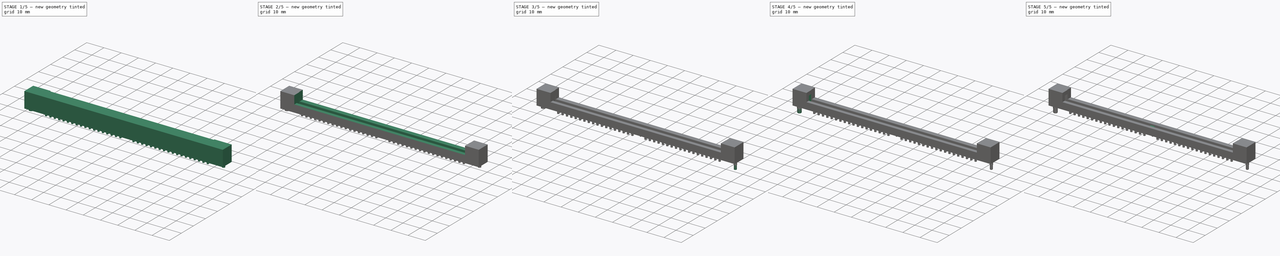
[diagram: build sequence overview — one tinted view per stage of 5, left to right]
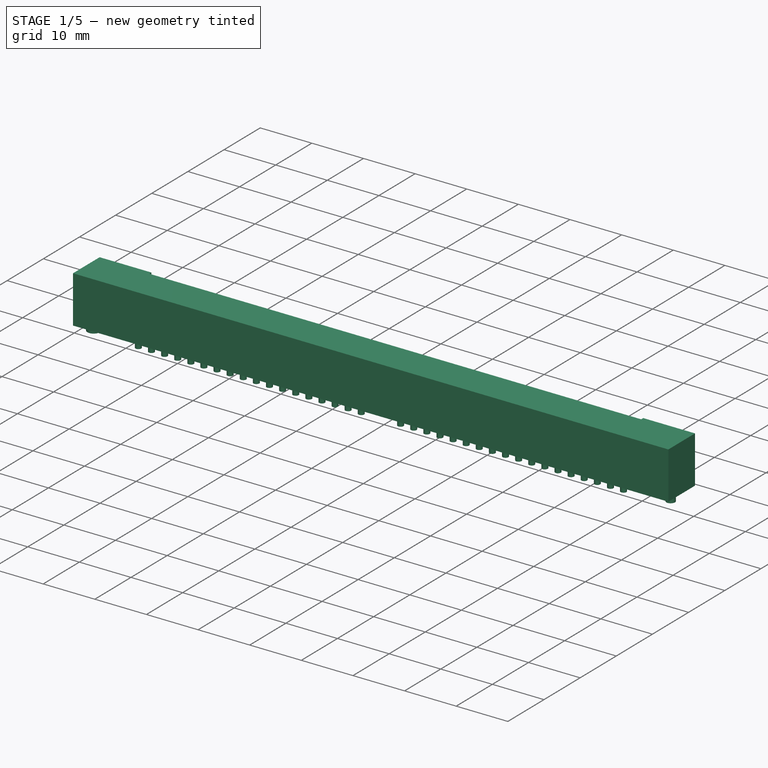
[diagram: stage 1 of 5 — iso view after this stage's code; geometry added in this stage tinted green]
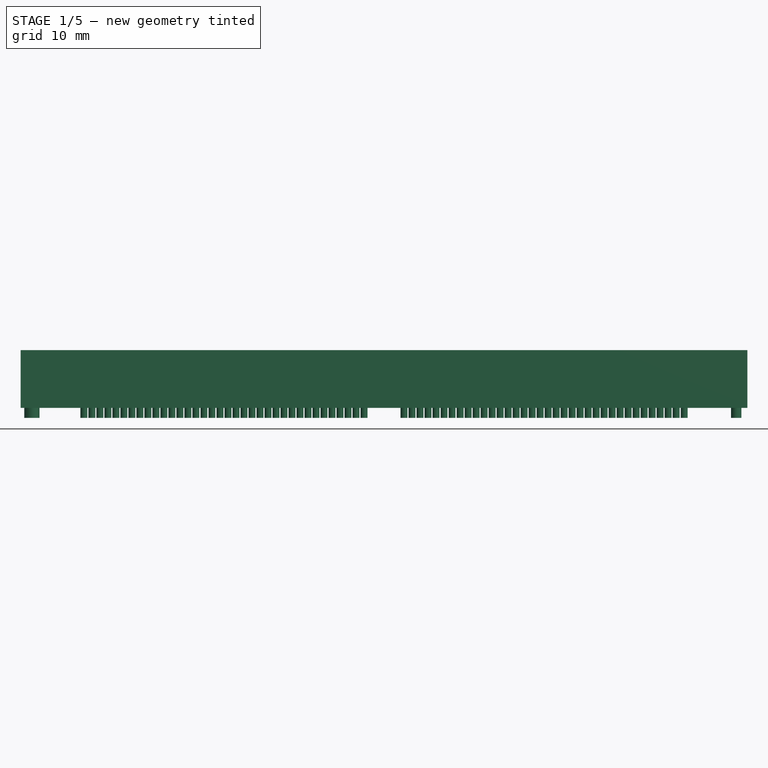
[diagram: stage 1 of 5 — front view after this stage's code; geometry added in this stage tinted green]
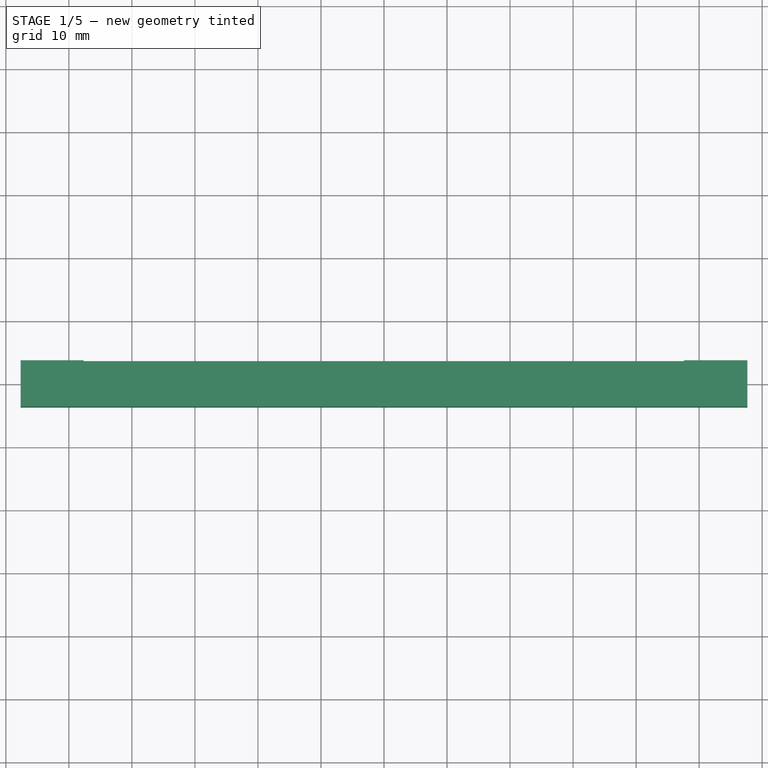
[diagram: stage 1 of 5 — top view after this stage's code; geometry added in this stage tinted green]
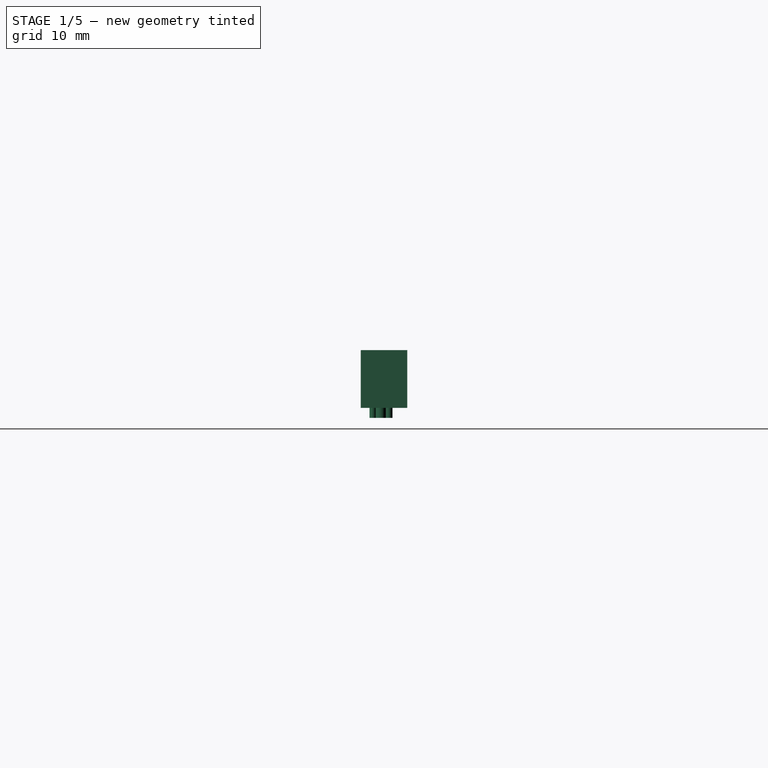
[diagram: stage 1 of 5 — right view after this stage's code; geometry added in this stage tinted green]
FCSTD DOCUMENT  (FreeCAD 0.20R29177 (Git))
Label: TE_5822019-4
License: All rights reserved
LicenseURL: http://en.wikipedia.org/wiki/All_rights_reserved
objects: PartDesign::SubtractiveBox×5, Sketcher::SketchObject×3, PartDesign::AdditiveBox×2, PartDesign::AdditiveCylinder×2, PartDesign::Chamfer×2, PartDesign::Body×2, Part::FeaturePython×2, Part::Feature×1, PartDesign::Pocket×1, PartDesign::Pad×1, PartDesign::Mirrored×1, App::DocumentObjectGroup×1
note: 35 computed .brp shape members not serialized (recipe doc carries the construction recipe); baked Part::Feature solids carry a one-line shape summary decoded from their .brp

FEATURE [Part::Feature] Part__Feature  label="C-5822019-4"
  Placement = pos=(0,0,4.37) rot=(0,0,1;0rad)
  shape: bbox 115.6 x 9.538 x 18.69 mm, 2015 faces (baked)
FEATURE [PartDesign::AdditiveBox] Box  label="base"
  AttacherType = Attacher::AttachEngine3D
  AttachmentOffset = pos=(-57.66,-3.685,0) rot=(0,0,1;0rad)
  Height = 9.15
  Length = 115.32
  MapMode = 5
  Placement = pos=(-57.66,-3.685,0) rot=(0,0,1;0rad)
  Support = -> [XY_Plane]
  Width = 7.37
FEATURE [PartDesign::SubtractiveBox] Box001  label="front-cut"
  AttacherType = Attacher::AttachEngine3D
  AttachmentOffset = pos=(-47.65,1.15,-3.69) rot=(0,0,1;0rad)
  BaseFeature = -> Box
  Height = 0.57
  Length = 95.2755
  MapMode = 5
  Placement = pos=(-47.65,3.69,1.15) rot=(1,0,0;1.5708rad)
  Support = -> [XZ_Plane]
  Width = 9
FEATURE [PartDesign::Body] Body  label="plastic"
  Group = -> [Box,Box001,Box002,Sketch001,Pocket,Box003,Box004,Sketch,Pad,Cylinder,Cylinder001,Chamfer,Box005,Mirrored,Box006,Chamfer001]
  Origin = -> Origin
  Tip = -> Chamfer001
FEATURE [Part::FeaturePython] FFab_lines  label="FFab"  # a2plus imported part (geometry in sourceFile) (typed FeaturePython)
  fixedPosition = true
FEATURE [Part::FeaturePython] THPs  label="PTHs"  # a2plus imported part (geometry in sourceFile) (typed FeaturePython)
  fixedPosition = true
FEATURE [App::DocumentObjectGroup] SIMM_72_socket_fp
  Group = -> [FFab_lines,THPs]
FEATURE [Sketcher::SketchObject] Sketch002
  FullyConstrained = false
  MapMode = 5
  Placement = pos=(0,0,0) rot=(0.57735,0.57735,0.57735;2.0944rad)
  Support = -> [YZ_Plane001]
  sketch-geometry (46):
    g0: LineSegment StartX=-1.56124 StartY=-2.6 StartZ=0 EndX=-1.56124 EndY=0.6 EndZ=0
    g1: LineSegment StartX=-2 StartY=0.6 StartZ=0 EndX=-2 EndY=-2.6 EndZ=0
    g2: LineSegment StartX=-1.65335 StartY=2.29991 StartZ=0 EndX=-1.60274 EndY=0.948405 EndZ=0
    g3: LineSegment StartX=-1.21119 StartY=2.09209 StartZ=0 EndX=-1.29283 EndY=0.943213 EndZ=0
    g4: LineSegment StartX=-2.1 StartY=0.7 StartZ=0 EndX=-2.1 EndY=1.7 EndZ=0
    g5: LineSegment StartX=-2.1 StartY=1.7 StartZ=0 EndX=-2 EndY=1.9 EndZ=0
    g6: LineSegment StartX=-2 StartY=0.6 StartZ=0 EndX=-2.1 EndY=0.7 EndZ=0
    g7: LineSegment StartX=-2 StartY=1.9 StartZ=0 EndX=-2 EndY=3.65329 EndZ=0
    g8: LineSegment StartX=-1.72661 StartY=3.76644 StartZ=0 EndX=-1.22053 EndY=3.25973 EndZ=0
    g9: LineSegment StartX=-1.3332 StartY=2.83804 StartZ=0 EndX=-1.45476 EndY=2.80521 EndZ=0
    g10: LineSegment StartX=-1.65335 StartY=2.54586 StartZ=0 EndX=-1.65335 EndY=2.29991 EndZ=0
    g11: ArcOfCircle CenterX=-1.83989 CenterY=3.65329 CenterZ=0 NormalX=0 NormalY=0 NormalZ=1 AngleXU=0 Radius=0.160109 StartAngle=0.784775 EndAngle=3.14159
    g12: ArcOfCircle CenterX=-1.44764 CenterY=0.954213 CenterZ=0 NormalX=0 NormalY=0 NormalZ=1 AngleXU=0 Radius=0.155209 StartAngle=3.17902 EndAngle=6.21225
    g13: ArcOfCircle CenterX=-1.38471 CenterY=2.54586 CenterZ=0 NormalX=0 NormalY=0 NormalZ=1 AngleXU=0 Radius=0.268644 StartAngle=1.83462 EndAngle=3.14159
    g14: ArcOfCircle CenterX=-1.39897 CenterY=3.08151 CenterZ=0 NormalX=0 NormalY=0 NormalZ=1 AngleXU=0 Radius=0.252194 StartAngle=4.97621 EndAngle=7.06796
    g15-g23: Circle x9 (B-spline internal-alignment scaffolding for g24; pole/knot coordinates omitted)
    g24: BSplineCurve PolesCount=9 KnotsCount=7 Degree=3 IsPeriodic=0
    g25-g31: GeomPoint x7 (B-spline internal-alignment scaffolding for g24; pole/knot coordinates omitted)
    g32: LineSegment StartX=-1.04175 StartY=2.24993 StartZ=0 EndX=-0.249928 EndY=2.24993 EndZ=0
    g33: LineSegment StartX=-0.1 StartY=2.1 StartZ=0 EndX=-0.1 EndY=0.957632 EndZ=0
    g34: LineSegment StartX=0.057632 StartY=0.8 StartZ=0 EndX=0.0704177 EndY=0.8 EndZ=0
    g35: LineSegment StartX=0.232709 StartY=0.925386 StartZ=0 EndX=0.8 EndY=3.1 EndZ=0
    g36: LineSegment StartX=0.8 StartY=3.1 StartZ=0 EndX=0.8 EndY=3.26519 EndZ=0
    g37: LineSegment StartX=0.8 StartY=3.26519 StartZ=0 EndX=0 EndY=4.0267 EndZ=0
    g38: LineSegment StartX=0 StartY=4.4678 StartZ=0 EndX=0.5 EndY=4.4 EndZ=0
    g39: LineSegment StartX=0.7 StartY=4.4 StartZ=0 EndX=0.8 EndY=4.44408 EndZ=0
    g40: LineSegment StartX=0.7 StartY=4.4 StartZ=0 EndX=0.5 EndY=4.4 EndZ=0
    g41: ArcOfCircle CenterX=-1.04175 CenterY=2.08005 CenterZ=0 NormalX=0 NormalY=0 NormalZ=1 AngleXU=0 Radius=0.169873 StartAngle=1.5708 EndAngle=3.07066
    g42: ArcOfCircle CenterX=-0.249928 CenterY=2.1 CenterZ=0 NormalX=0 NormalY=0 NormalZ=1 AngleXU=0 Radius=0.149928 StartAngle=0 EndAngle=1.5708
    g43: ArcOfCircle CenterX=0.057632 CenterY=0.957632 CenterZ=0 NormalX=0 NormalY=0 NormalZ=1 AngleXU=0 Radius=0.157632 StartAngle=3.14159 EndAngle=4.71239
    g44: ArcOfCircle CenterX=0.0704177 CenterY=0.967723 CenterZ=0 NormalX=0 NormalY=0 NormalZ=1 AngleXU=0 Radius=0.167723 StartAngle=4.71239 EndAngle=6.028
    g45: LineSegment StartX=-1.56124 StartY=0.6 StartZ=0 EndX=0.2 EndY=0.6 EndZ=0
  constraints (46):
    c: Vertical(g0)
    c: Vertical(g1)
    c: Vertical(g4)
    c: Coincident(g5,g4)
    c: Coincident(g4,g6)
    c: Coincident(g7,g5)
    c: Vertical(g7)
    c: Vertical(g10)
    c: Coincident(g2,g10)
    c: Tangent(g8,g11) = 1.5708
    c: Tangent(g7,g11) = 1.5708
    c: Tangent(g3,g12) = 1.5708
    c: Tangent(g2,g12) = -1.5708
    c: Tangent(g9,g13) = -1.5708
    c: Tangent(g10,g13) = -1.5708
    c: Tangent(g8,g14) = 1.5708
    c: Tangent(g9,g14) = 1.5708
    c: PointOnObject(g16,g1)
    c: PointOnObject(g22,g0)
    c: Weight(g15) = 1
    c: Equal(g15, g16-g23) x8
    c: InternalAlignment(g15-g23 -> g24) x9
    c: InternalAlignment(g25-g31 -> g24) x7
    c: Coincident(g1,g24)
    c: Coincident(g0,g24)
    c: Horizontal(g32)
    c: Vertical(g33)
    c: Horizontal(g34)
    c: Coincident(g36,g35)
    c: Vertical(g36)
    c: Coincident(g37,g36)
    c: PointOnObject(g37,g-2)
    c: PointOnObject(g38,g-2)
    c: Coincident(g40,g39)
    c: Coincident(g40,g38)
    c: Horizontal(g40)
    c: Tangent(g32,g41) = 1.5708
    c: Tangent(g3,g41) = -1.5708
    c: Tangent(g33,g42) = 1.5708
    c: Tangent(g32,g42) = 1.5708
    c: Tangent(g33,g43) = -1.5708
    c: Tangent(g34,g43) = -1.5708
    c: Tangent(g35,g44) = -1.5708
    c: Tangent(g34,g44) = -1.5708
    c: Coincident(g45,g0)
    c: Horizontal(g45)
FEATURE [PartDesign::Body] Body001  label="Pin"
  Group = -> [Sketch002]
  Origin = -> Origin001
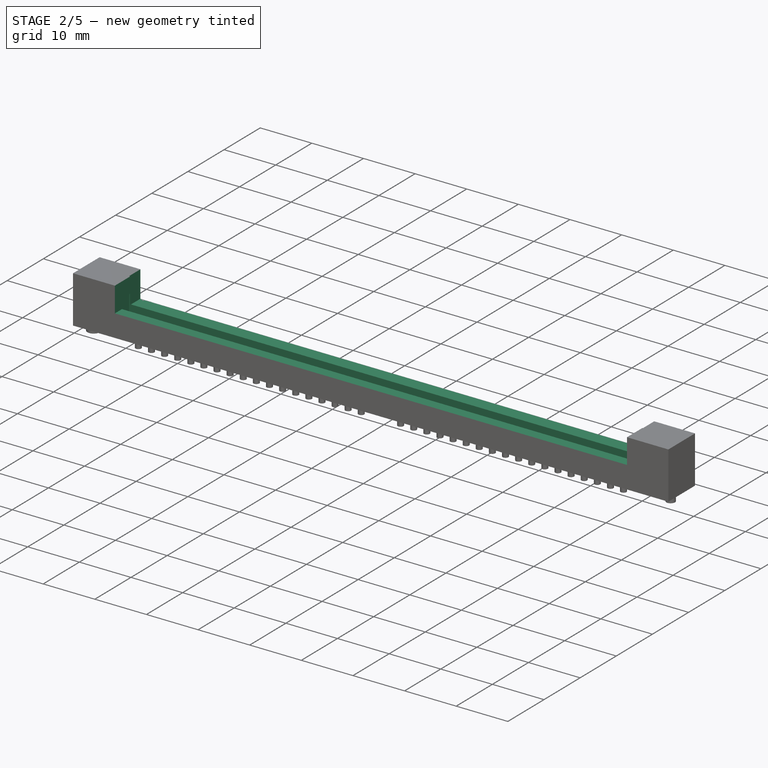
[diagram: stage 2 of 5 — iso view after this stage's code; geometry added in this stage tinted green]
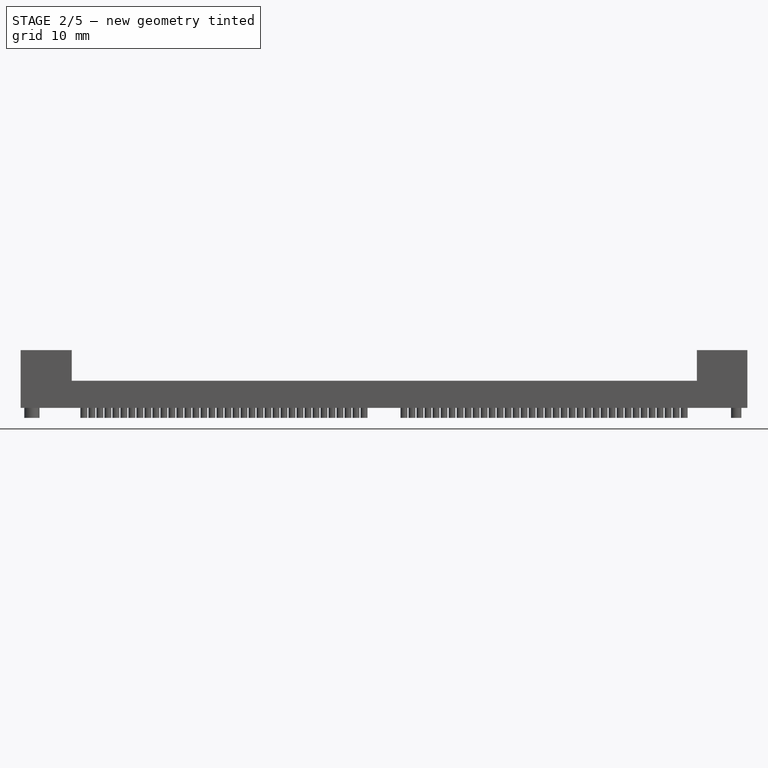
[diagram: stage 2 of 5 — front view after this stage's code; geometry added in this stage tinted green]
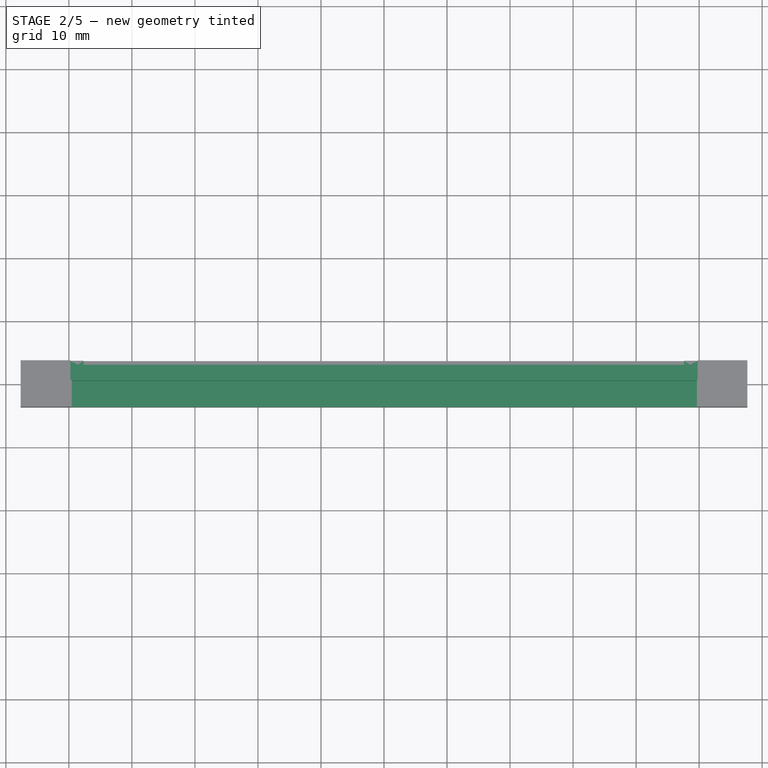
[diagram: stage 2 of 5 — top view after this stage's code; geometry added in this stage tinted green]
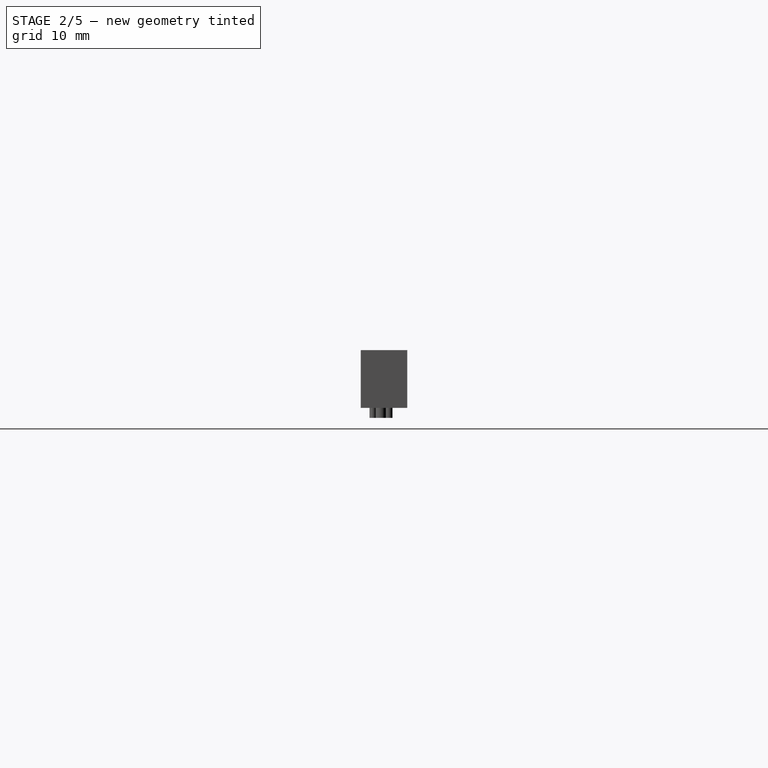
[diagram: stage 2 of 5 — right view after this stage's code; geometry added in this stage tinted green]
FEATURE [PartDesign::SubtractiveBox] Box002  label="through-cut"
  AttacherType = Attacher::AttachEngine3D
  AttachmentOffset = pos=(-49.55,4.3,-4) rot=(0,0,1;0rad)
  BaseFeature = -> Box001
  Height = 8
  Length = 99.2
  MapMode = 5
  Placement = pos=(-49.55,4,4.3) rot=(1,0,0;1.5708rad)
  Support = -> [XZ_Plane]
  Width = 6
FEATURE [Sketcher::SketchObject] Sketch001  label="L-cut-sketch"
  FullyConstrained = false
  sketch-geometry (12):
    g0: LineSegment StartX=-48.5771 StartY=3.05 StartZ=0 EndX=-48.5771 EndY=0.535187 EndZ=0
    g1: LineSegment StartX=-48.5771 StartY=0.535187 StartZ=0 EndX=-49.7589 EndY=0.535187 EndZ=0
    g2: LineSegment StartX=-49.7589 StartY=0.535187 StartZ=0 EndX=-49.7589 EndY=3.7 EndZ=0
    g3: LineSegment StartX=-48.5771 StartY=3.05 StartZ=0 EndX=-47.6261 EndY=3.05 EndZ=0
    g4: LineSegment StartX=-47.6261 StartY=3.05 StartZ=0 EndX=-47.6261 EndY=3.7 EndZ=0
    g5: LineSegment StartX=49.7593 StartY=3.7 StartZ=0 EndX=47.6255 EndY=3.7 EndZ=0
    g6: LineSegment StartX=48.5771 StartY=3.05 StartZ=0 EndX=48.5771 EndY=0.53345 EndZ=0
    g7: LineSegment StartX=48.5771 StartY=0.53345 StartZ=0 EndX=49.7593 EndY=0.53345 EndZ=0
    g8: LineSegment StartX=49.7593 StartY=0.53345 StartZ=0 EndX=49.7593 EndY=3.7 EndZ=0
    g9: LineSegment StartX=48.5771 StartY=3.05 StartZ=0 EndX=47.6255 EndY=3.05 EndZ=0
    g10: LineSegment StartX=47.6255 StartY=3.05 StartZ=0 EndX=47.6255 EndY=3.7 EndZ=0
    g11: LineSegment StartX=-49.7589 StartY=3.7 StartZ=0 EndX=-47.6261 EndY=3.7 EndZ=0
  constraints (24):
    c: Coincident(g0,g1)
    c: Coincident(g1,g2)
    c: Horizontal(g1)
    c: Vertical(g0)
    c: Vertical(g2)
    c: Coincident(g3,g4)
    c: Horizontal(g3)
    c: Vertical(g4)
    c: Coincident(g0,g3)
    c: Coincident(g6,g7)
    c: Coincident(g7,g8)
    c: Coincident(g8,g5)
    c: Horizontal(g5)
    c: Horizontal(g7)
    c: Vertical(g6)
    c: Vertical(g8)
    c: Coincident(g9,g10)
    c: Horizontal(g9)
    c: Vertical(g10)
    c: Coincident(g6,g9)
    c: Coincident(g11,g2)
    c: Coincident(g11,g4)
    c: Horizontal(g11)
    c: Coincident(g5,g10)
FEATURE [PartDesign::Pocket] Pocket  label="L-cuts"
  BaseFeature = -> Box002
  Direction = (0,0,-1)
  Length = 10
  Length2 = -4
  Placement = pos=(-49.55,4,4.3) rot=(1,0,0;1.5708rad)
  Profile = -> Sketch001
  ReferenceAxis = -> Sketch001 [N_Axis]
  Reversed = true
  Type = 4
FEATURE [PartDesign::SubtractiveBox] Box003  label="PCB-cut"
  AttacherType = Attacher::AttachEngine3D
  AttachmentOffset = pos=(-49.75,-1.725,1.15) rot=(0,0,1;0rad)
  BaseFeature = -> Pocket
  Height = 5
  Length = 99.5
  MapMode = 5
  Placement = pos=(-49.75,-1.725,1.15) rot=(0,0,1;0rad)
  Support = -> [XY_Plane]
  Width = 2.25
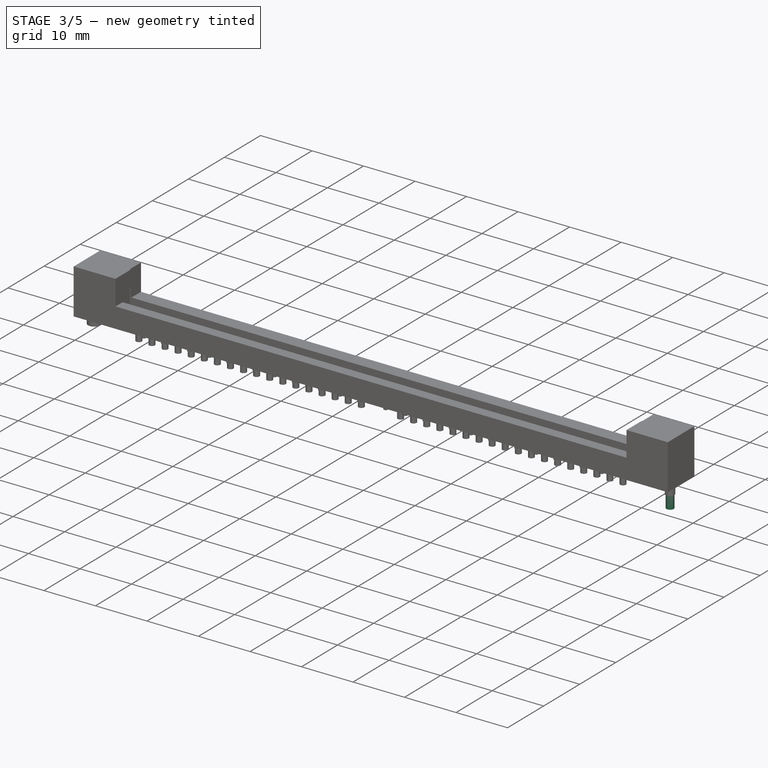
[diagram: stage 3 of 5 — iso view after this stage's code; geometry added in this stage tinted green]
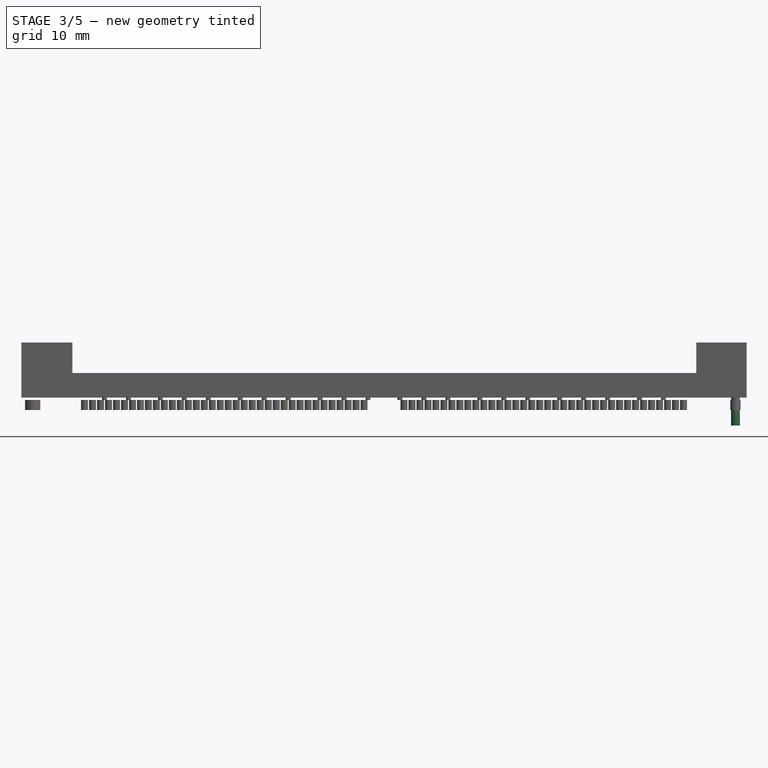
[diagram: stage 3 of 5 — front view after this stage's code; geometry added in this stage tinted green]
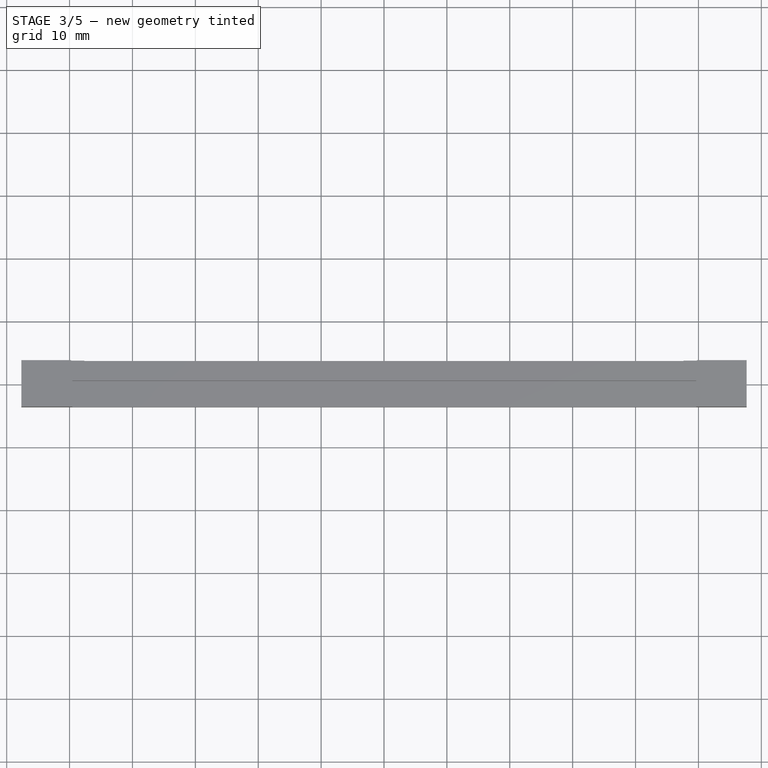
[diagram: stage 3 of 5 — top view after this stage's code; geometry added in this stage tinted green]
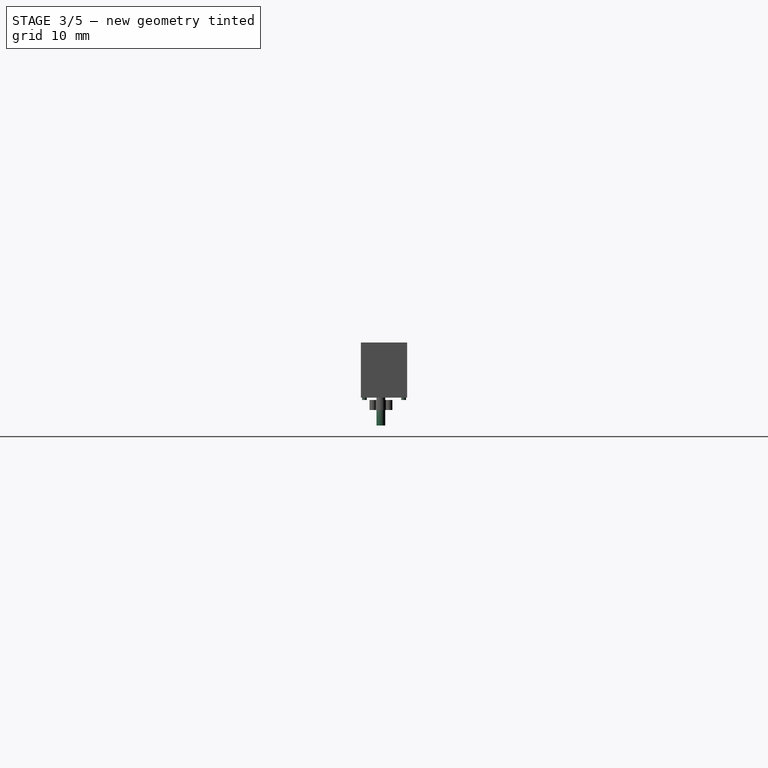
[diagram: stage 3 of 5 — right view after this stage's code; geometry added in this stage tinted green]
FEATURE [PartDesign::SubtractiveBox] Box004  label="bottom-out-cut"
  AttacherType = Attacher::AttachEngine3D
  AttachmentOffset = pos=(-59,0,-4) rot=(0,0,1;0rad)
  BaseFeature = -> Box003
  Height = 8
  Length = 118.32
  MapMode = 5
  Placement = pos=(-59,4,9e-16) rot=(1,0,0;1.5708rad)
  Support = -> [XZ_Plane]
  Width = 0.382
FEATURE [Sketcher::SketchObject] Sketch  label="nobs-sketch"
  FullyConstrained = false
  Placement = pos=(-43.18,5.318,0.382) rot=(1,0,0;3.14159rad)
  sketch-geometry (44):
    g0: Circle CenterX=87.6292 CenterY=8.44249 CenterZ=0 NormalX=0 NormalY=0 NormalZ=1 AngleXU=3.14159 Radius=0.383
    g1: Circle CenterX=87.6292 CenterY=2.19819 CenterZ=0 NormalX=0 NormalY=0 NormalZ=1 AngleXU=3.14159 Radius=0.383
    g2: Circle CenterX=83.8192 CenterY=8.44249 CenterZ=0 NormalX=0 NormalY=0 NormalZ=1 AngleXU=3.14159 Radius=0.383
    g3: Circle CenterX=83.8192 CenterY=2.19819 CenterZ=0 NormalX=0 NormalY=0 NormalZ=1 AngleXU=3.14159 Radius=0.383
    g4: Circle CenterX=78.7392 CenterY=8.44249 CenterZ=0 NormalX=0 NormalY=0 NormalZ=1 AngleXU=3.14159 Radius=0.383
    g5: Circle CenterX=78.7392 CenterY=2.19819 CenterZ=0 NormalX=0 NormalY=0 NormalZ=1 AngleXU=3.14159 Radius=0.383
    g6: Circle CenterX=74.9292 CenterY=8.44249 CenterZ=0 NormalX=0 NormalY=0 NormalZ=1 AngleXU=3.14159 Radius=0.383
    g7: Circle CenterX=74.9292 CenterY=2.19819 CenterZ=0 NormalX=0 NormalY=0 NormalZ=1 AngleXU=3.14159 Radius=0.383
    g8: Circle CenterX=71.1192 CenterY=8.44249 CenterZ=0 NormalX=0 NormalY=0 NormalZ=1 AngleXU=3.14159 Radius=0.383
    g9: Circle CenterX=71.1192 CenterY=2.19819 CenterZ=0 NormalX=0 NormalY=0 NormalZ=1 AngleXU=3.14159 Radius=0.383
    g10: Circle CenterX=66.0392 CenterY=8.44249 CenterZ=0 NormalX=0 NormalY=0 NormalZ=1 AngleXU=3.14159 Radius=0.383
    g11: Circle CenterX=66.0392 CenterY=2.19819 CenterZ=0 NormalX=0 NormalY=0 NormalZ=1 AngleXU=3.14159 Radius=0.383
    g12: Circle CenterX=62.2292 CenterY=8.44249 CenterZ=0 NormalX=0 NormalY=0 NormalZ=1 AngleXU=3.14159 Radius=0.383
    g13: Circle CenterX=62.2292 CenterY=2.19819 CenterZ=0 NormalX=0 NormalY=0 NormalZ=1 AngleXU=3.14159 Radius=0.383
    g14: Circle CenterX=58.4192 CenterY=8.44249 CenterZ=0 NormalX=0 NormalY=0 NormalZ=1 AngleXU=3.14159 Radius=0.383
    g15: Circle CenterX=58.4192 CenterY=2.19819 CenterZ=0 NormalX=0 NormalY=0 NormalZ=1 AngleXU=3.14159 Radius=0.383
    g16: Circle CenterX=53.3392 CenterY=8.44249 CenterZ=0 NormalX=0 NormalY=0 NormalZ=1 AngleXU=3.14159 Radius=0.383
    g17: Circle CenterX=53.3392 CenterY=2.19819 CenterZ=0 NormalX=0 NormalY=0 NormalZ=1 AngleXU=3.14159 Radius=0.383
    g18: Circle CenterX=49.5292 CenterY=8.44249 CenterZ=0 NormalX=0 NormalY=0 NormalZ=1 AngleXU=3.14159 Radius=0.383
    g19: Circle CenterX=49.5292 CenterY=2.19819 CenterZ=0 NormalX=0 NormalY=0 NormalZ=1 AngleXU=3.14159 Radius=0.383
    g20: Circle CenterX=45.7192 CenterY=8.44249 CenterZ=0 NormalX=0 NormalY=0 NormalZ=1 AngleXU=3.14159 Radius=0.383
    g21: Circle CenterX=45.7192 CenterY=2.19819 CenterZ=0 NormalX=0 NormalY=0 NormalZ=1 AngleXU=3.14159 Radius=0.383
    g22: Circle CenterX=-1.27 CenterY=8.44249 CenterZ=0 NormalX=0 NormalY=0 NormalZ=1 AngleXU=3.14159 Radius=0.383
    g23: Circle CenterX=-1.27 CenterY=2.19819 CenterZ=0 NormalX=0 NormalY=0 NormalZ=1 AngleXU=3.14159 Radius=0.383
    g24: Circle CenterX=2.54 CenterY=8.44249 CenterZ=0 NormalX=0 NormalY=0 NormalZ=1 AngleXU=3.14159 Radius=0.383
    g25: Circle CenterX=2.54 CenterY=2.19819 CenterZ=0 NormalX=0 NormalY=0 NormalZ=1 AngleXU=3.14159 Radius=0.383
    g26: Circle CenterX=7.62 CenterY=8.44249 CenterZ=0 NormalX=0 NormalY=0 NormalZ=1 AngleXU=3.14159 Radius=0.383
    g27: Circle CenterX=7.62 CenterY=2.19819 CenterZ=0 NormalX=0 NormalY=0 NormalZ=1 AngleXU=3.14159 Radius=0.383
    g28: Circle CenterX=11.43 CenterY=8.44249 CenterZ=0 NormalX=0 NormalY=0 NormalZ=1 AngleXU=3.14159 Radius=0.383
    g29: Circle CenterX=11.43 CenterY=2.19819 CenterZ=0 NormalX=0 NormalY=0 NormalZ=1 AngleXU=3.14159 Radius=0.383
    g30: Circle CenterX=15.24 CenterY=8.44249 CenterZ=0 NormalX=0 NormalY=0 NormalZ=1 AngleXU=3.14159 Radius=0.383
    g31: Circle CenterX=15.24 CenterY=2.19819 CenterZ=0 NormalX=0 NormalY=0 NormalZ=1 AngleXU=3.14159 Radius=0.383
    g32: Circle CenterX=20.32 CenterY=8.44249 CenterZ=0 NormalX=0 NormalY=0 NormalZ=1 AngleXU=3.14159 Radius=0.383
    g33: Circle CenterX=20.32 CenterY=2.19819 CenterZ=0 NormalX=0 NormalY=0 NormalZ=1 AngleXU=3.14159 Radius=0.383
    g34: Circle CenterX=24.13 CenterY=8.44249 CenterZ=0 NormalX=0 NormalY=0 NormalZ=1 AngleXU=3.14159 Radius=0.383
    g35: Circle CenterX=24.13 CenterY=2.19819 CenterZ=0 NormalX=0 NormalY=0 NormalZ=1 AngleXU=3.14159 Radius=0.383
    g36: Circle CenterX=27.94 CenterY=8.44249 CenterZ=0 NormalX=0 NormalY=0 NormalZ=1 AngleXU=3.14159 Radius=0.383
    g37: Circle CenterX=27.94 CenterY=2.19819 CenterZ=0 NormalX=0 NormalY=0 NormalZ=1 AngleXU=3.14159 Radius=0.383
    g38: Circle CenterX=33.02 CenterY=8.44249 CenterZ=0 NormalX=0 NormalY=0 NormalZ=1 AngleXU=3.14159 Radius=0.383
    g39: Circle CenterX=33.02 CenterY=2.19819 CenterZ=0 NormalX=0 NormalY=0 NormalZ=1 AngleXU=3.14159 Radius=0.383
    g40: Circle CenterX=36.83 CenterY=8.44249 CenterZ=0 NormalX=0 NormalY=0 NormalZ=1 AngleXU=3.14159 Radius=0.383
    g41: Circle CenterX=36.83 CenterY=2.19819 CenterZ=0 NormalX=0 NormalY=0 NormalZ=1 AngleXU=3.14159 Radius=0.383
    g42: Circle CenterX=40.64 CenterY=8.44249 CenterZ=0 NormalX=0 NormalY=0 NormalZ=1 AngleXU=3.14159 Radius=0.383
    g43: Circle CenterX=40.64 CenterY=2.19819 CenterZ=0 NormalX=0 NormalY=0 NormalZ=1 AngleXU=3.14159 Radius=0.383
FEATURE [PartDesign::Pad] Pad  label="bottom-nobs"
  BaseFeature = -> Box004
  Direction = (0,-1e-16,-1)
  Length = 0.385
  Length2 = 10
  Placement = pos=(-59,4,1e-15) rot=(1,0,0;1.5708rad)
  Profile = -> Sketch
  ReferenceAxis = -> Sketch [N_Axis]
  Type = 0
FEATURE [PartDesign::AdditiveCylinder] Cylinder  label="attach-pole-right"
  Angle = 360
  AttacherType = Attacher::AttachEngine3D
  AttachmentOffset = pos=(55.88,-0.5,-4.065) rot=(0,0,1;0rad)
  BaseFeature = -> Pad
  FirstAngle = 0
  Height = 4.5
  MapMode = 5
  Placement = pos=(55.88,-0.5,-4.065) rot=(0,0,1;0rad)
  Radius = 0.7
  SecondAngle = 0
  Support = -> [XY_Plane]
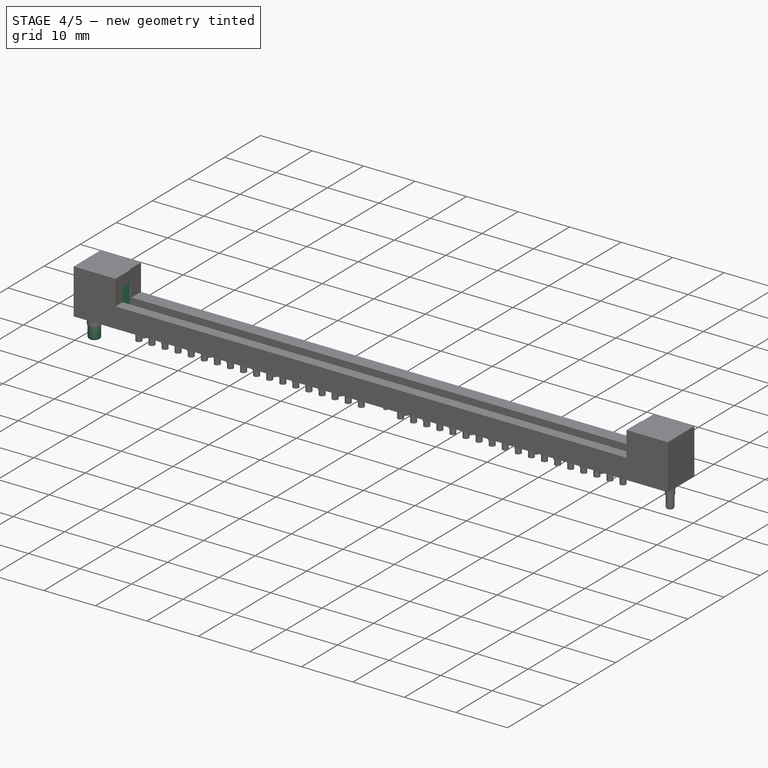
[diagram: stage 4 of 5 — iso view after this stage's code; geometry added in this stage tinted green]
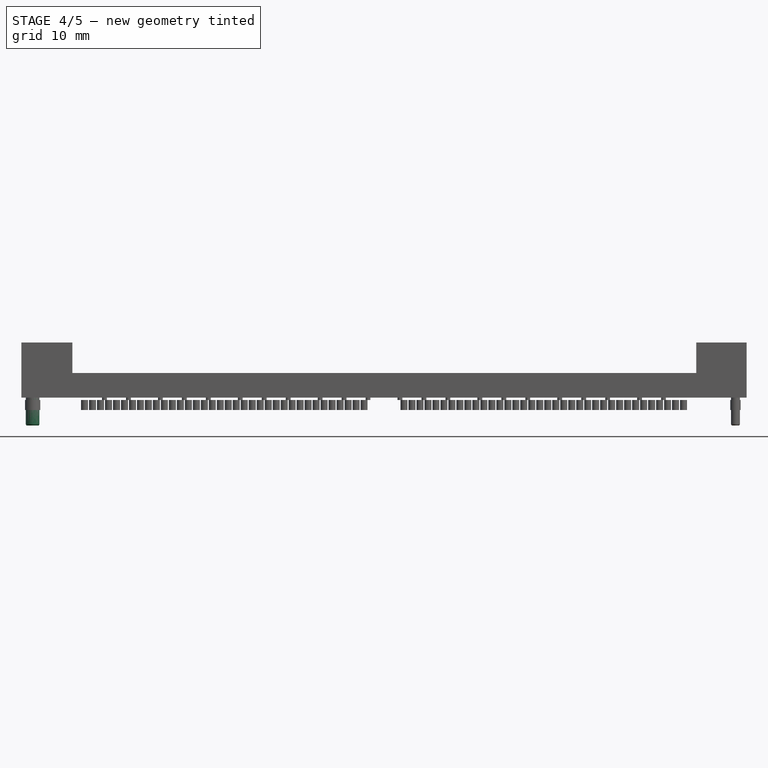
[diagram: stage 4 of 5 — front view after this stage's code; geometry added in this stage tinted green]
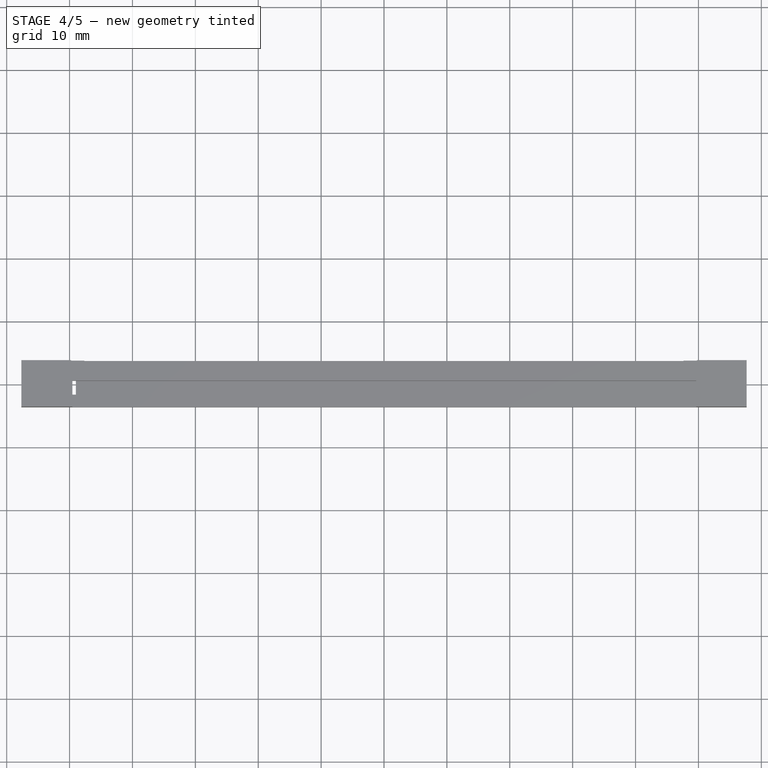
[diagram: stage 4 of 5 — top view after this stage's code; geometry added in this stage tinted green]
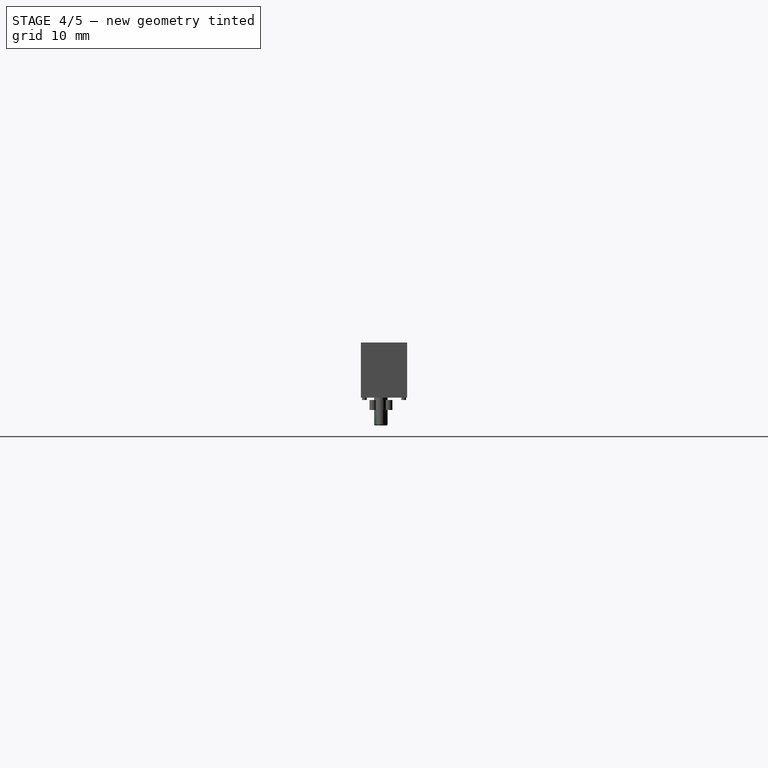
[diagram: stage 4 of 5 — right view after this stage's code; geometry added in this stage tinted green]
FEATURE [PartDesign::AdditiveCylinder] Cylinder001  label="attach-pole-left"
  Angle = 360
  AttacherType = Attacher::AttachEngine3D
  AttachmentOffset = pos=(-55.88,-0.5,-4.065) rot=(0,0,1;0rad)
  BaseFeature = -> Cylinder
  FirstAngle = 0
  Height = 4.5
  MapMode = 5
  Placement = pos=(-55.88,-0.5,-4.065) rot=(0,0,1;0rad)
  Radius = 1.08
  SecondAngle = 0
  Support = -> [XY_Plane]
FEATURE [PartDesign::Chamfer] Chamfer  label="pole-softening"
  Angle = 31
  Base = -> Cylinder001 [Edge134,Edge194]
  BaseFeature = -> Cylinder001
  ChamferType = 2
  FlipDirection = false
  Placement = pos=(-55.88,-0.5,-4.065) rot=(0,0,1;0rad)
  Size = 0.2
  Size2 = 1
  SupportTransform = false
  UseAllEdges = false
FEATURE [PartDesign::SubtractiveBox] Box005  label="left-bot-cut"
  AttacherType = Attacher::AttachEngine3D
  AttachmentOffset = pos=(-52.12,-1.725,0) rot=(0,0,1;0rad)
  BaseFeature = -> Chamfer
  Height = 7
  Length = 3.12
  MapMode = 5
  Placement = pos=(-52.12,-1.725,0) rot=(0,0,1;0rad)
  Support = -> [XY_Plane]
  Width = 2.25
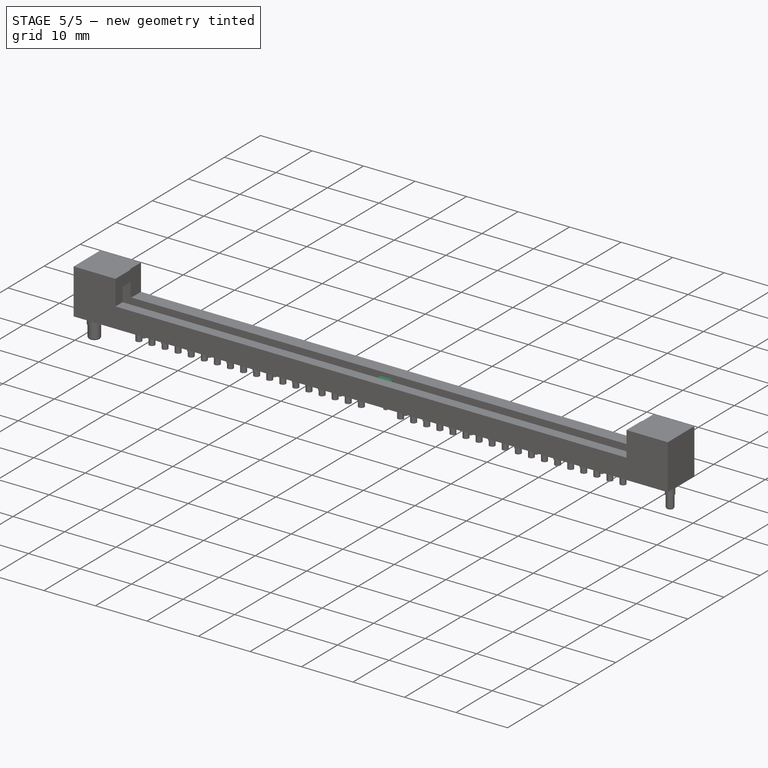
[diagram: stage 5 of 5 — iso view after this stage's code; geometry added in this stage tinted green]
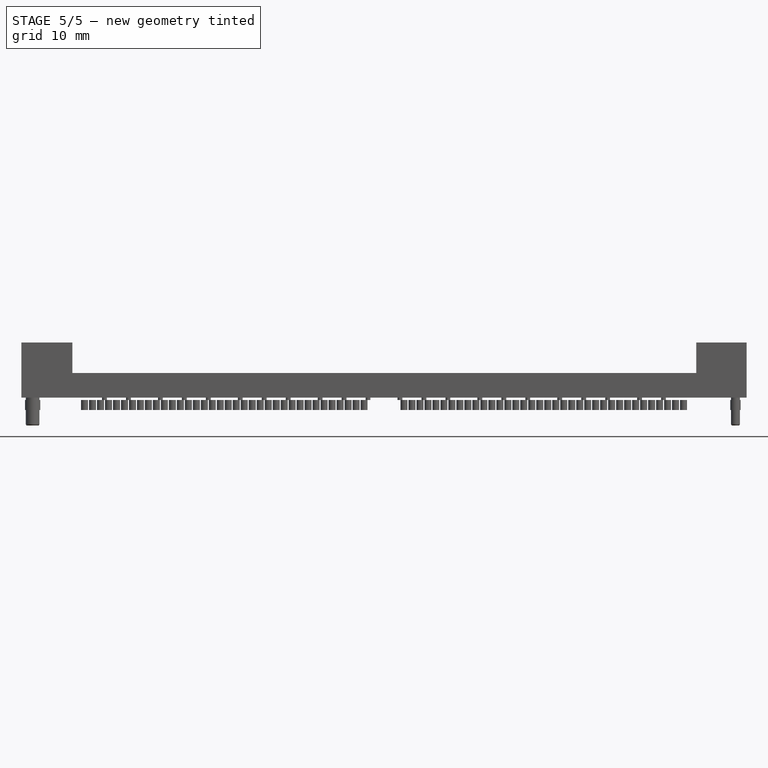
[diagram: stage 5 of 5 — front view after this stage's code; geometry added in this stage tinted green]
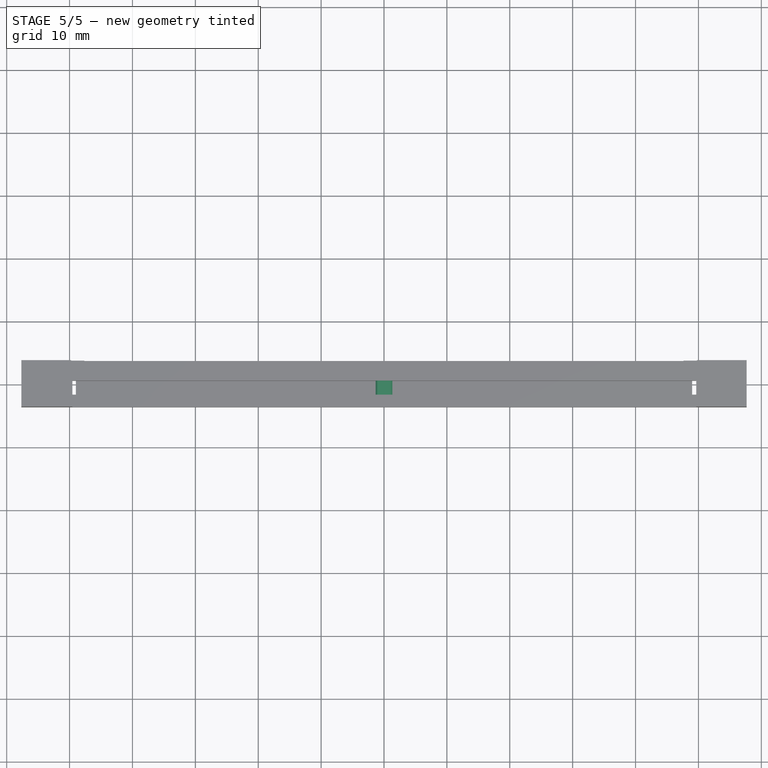
[diagram: stage 5 of 5 — top view after this stage's code; geometry added in this stage tinted green]
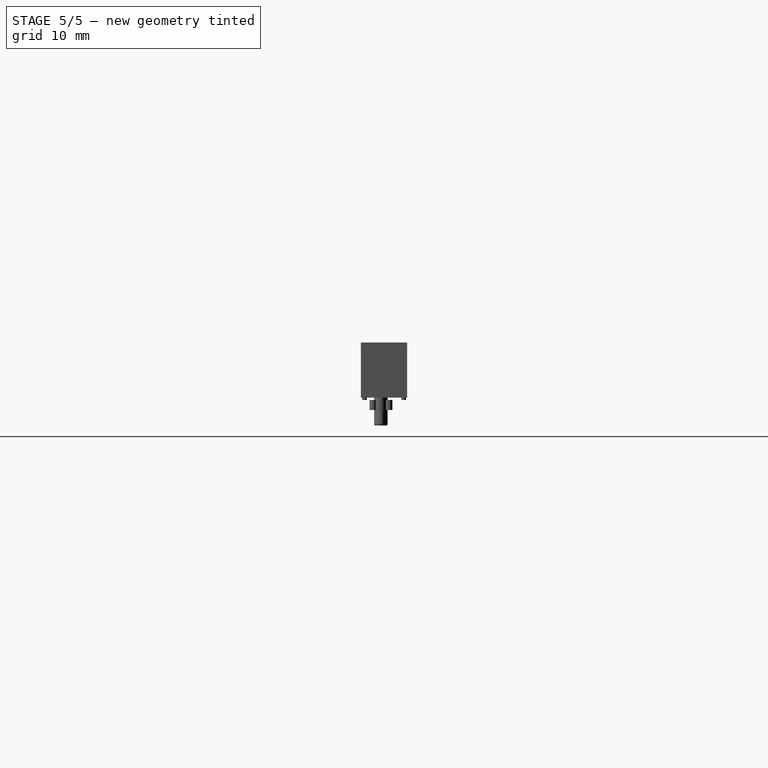
[diagram: stage 5 of 5 — right view after this stage's code; geometry added in this stage tinted green]
FEATURE [PartDesign::Mirrored] Mirrored  label="right-bot-cut"
  BaseFeature = -> Box005
  MirrorPlane = -> YZ_Plane
  Originals = -> [Box005]
  Placement = pos=(-52.12,-1.725,0) rot=(0,0,1;0rad)
FEATURE [PartDesign::AdditiveBox] Box006  label="middle-separator"
  AttacherType = Attacher::AttachEngine3D
  AttachmentOffset = pos=(-1.335,-1.72,2.11) rot=(0,0,1;0rad)
  BaseFeature = -> Mirrored
  Height = 1.375
  Length = 2.67
  MapMode = 5
  Placement = pos=(-1.335,-1.72,2.11) rot=(0,0,1;0rad)
  Support = -> [XY_Plane]
  Width = 2.25
FEATURE [PartDesign::Chamfer] Chamfer001  label="separator-chamfer"
  Angle = 45
  Base = -> Box006 [Edge279,Edge278]
  BaseFeature = -> Box006
  ChamferType = 0
  FlipDirection = false
  Placement = pos=(-1.335,-1.72,2.11) rot=(0,0,1;0rad)
  Size = 0.26
  Size2 = 1
  SupportTransform = false
  UseAllEdges = false
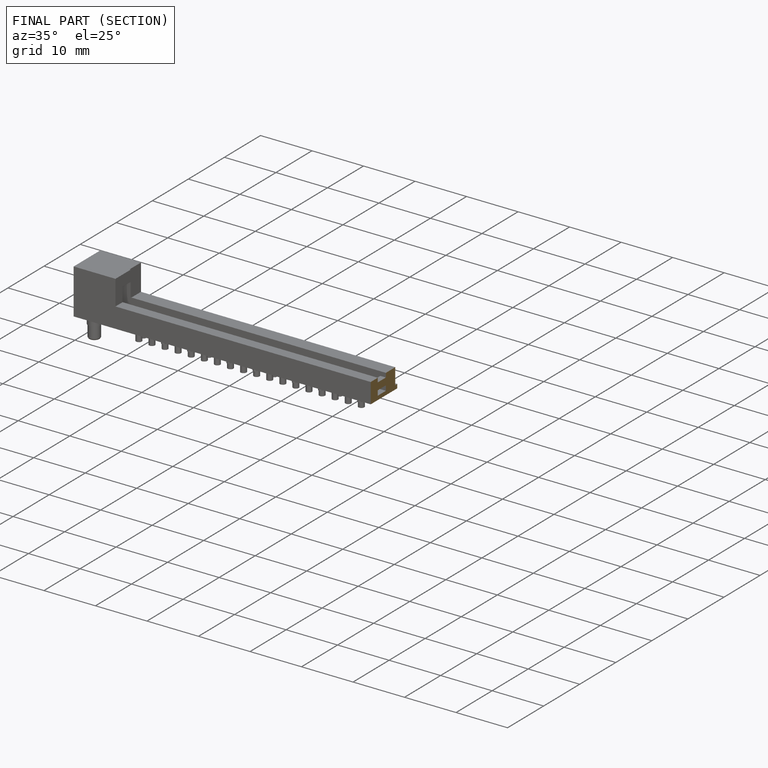
[diagram: finished part — half-section view (interior)]
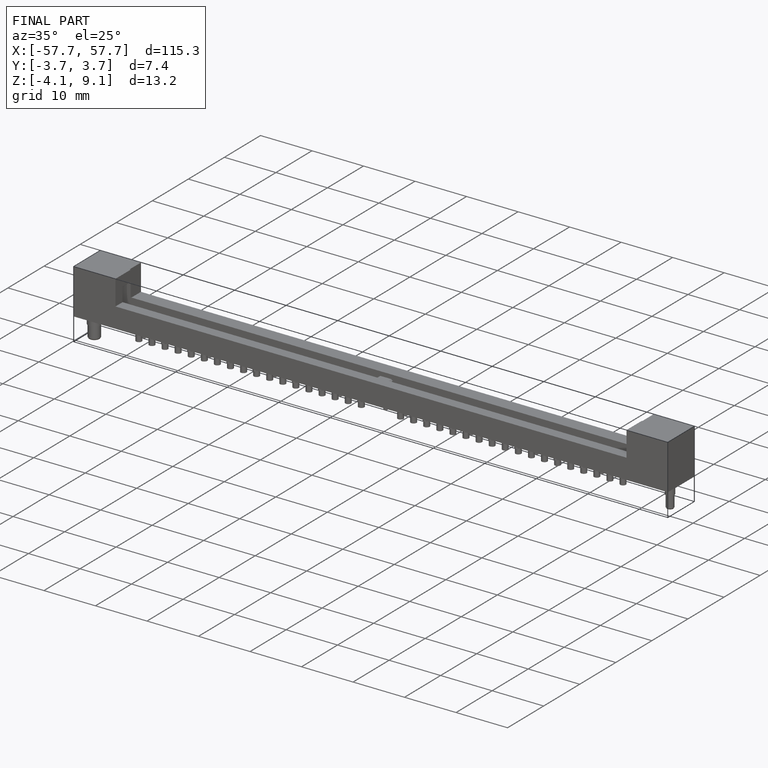
[diagram: finished part — iso view with bounding-box wireframe]
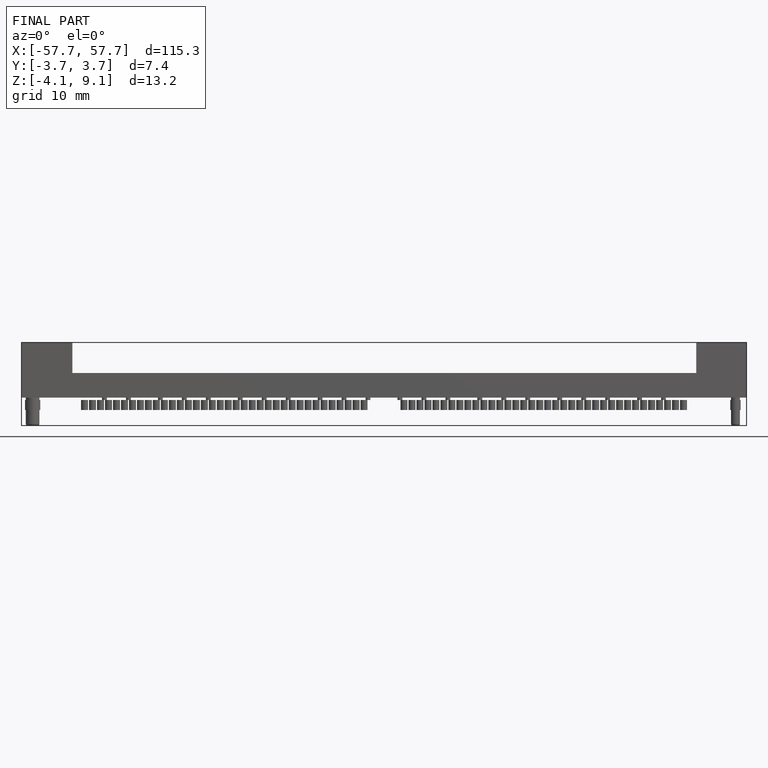
[diagram: finished part — front view with bounding-box wireframe]
